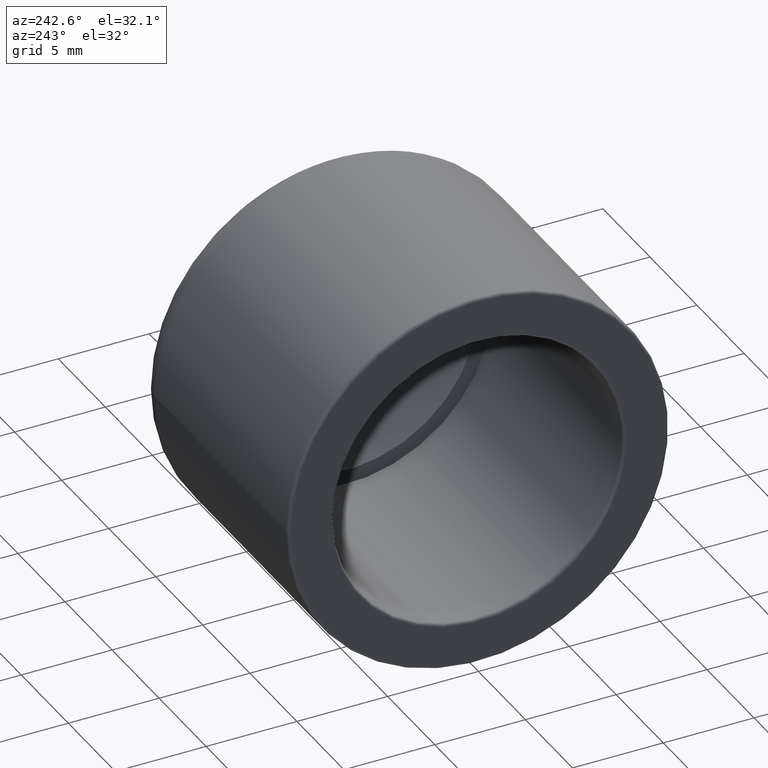
[diagram: clean part render]
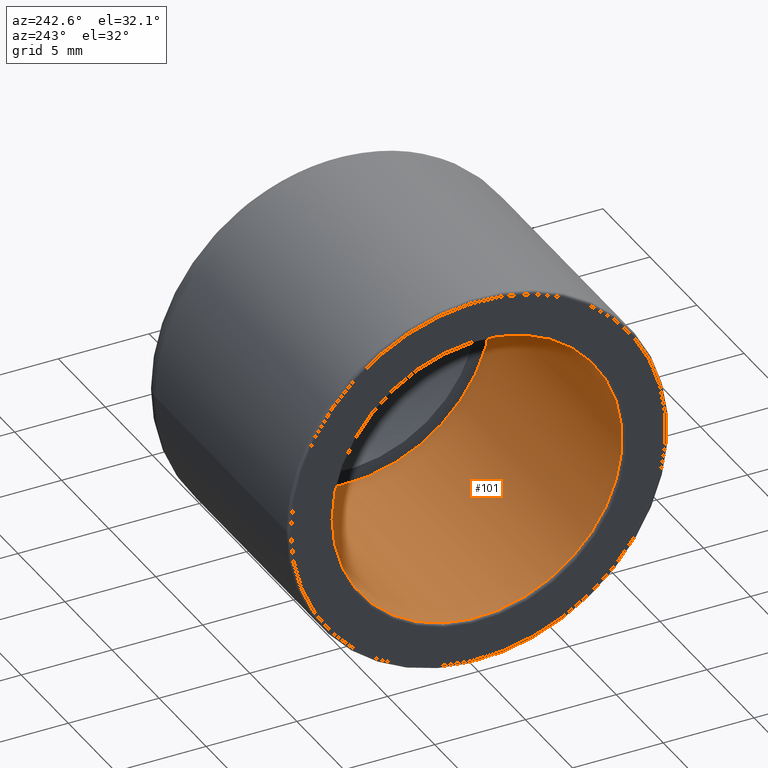
[diagram: same view with one face highlighted and labeled with its STEP entity id]
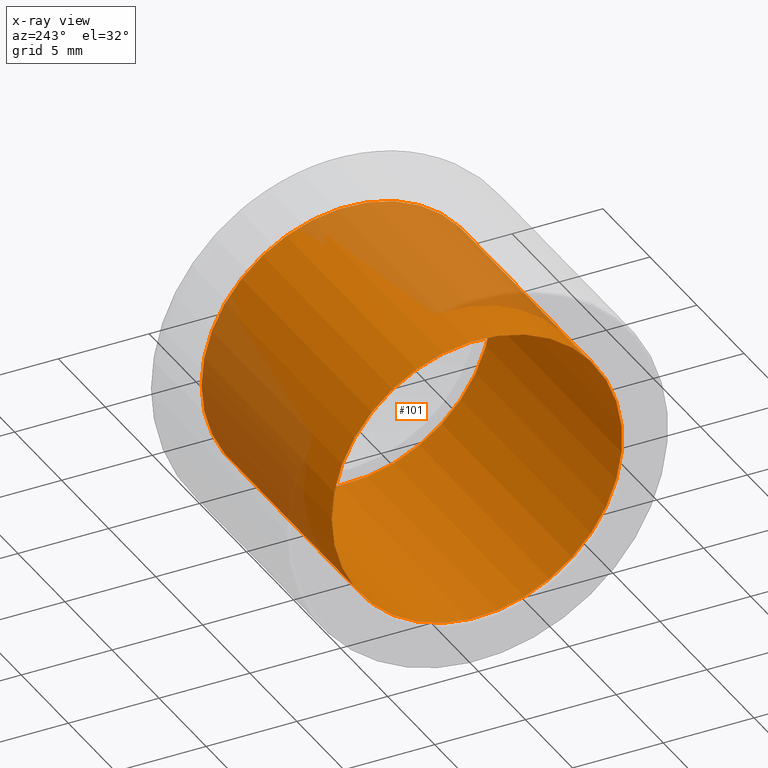
[diagram: x-ray of the same camera — body ghosted, the highlighted face saturated]
A machine part, auxiliary view. The second image highlights one B-rep face of the part: STEP entity #101.
The next image is the same camera in x-ray: the body ghosted, the highlighted face saturated — about 24% of this face is hidden behind the body in this view.
In plain terms, the highlighted cylindrical surface (bore or boss wall) has radius 8 mm, axis along (1, 0, 0).
Its self-contained STEP definition (entity closure, byte-faithful):
#20=CYLINDRICAL_SURFACE('',#118,7.99999999999999);
#25=FACE_BOUND('',#47,.T.);
#33=FACE_OUTER_BOUND('',#46,.T.);
#46=EDGE_LOOP('',(#86));
#47=EDGE_LOOP('',(#87));
#56=CIRCLE('',#114,7.99999999999999);
#59=CIRCLE('',#119,7.99999999999999);
#64=VERTEX_POINT('',#171);
#67=VERTEX_POINT('',#179);
#72=EDGE_CURVE('',#64,#64,#56,.T.);
#75=EDGE_CURVE('',#67,#67,#59,.T.);
#86=ORIENTED_EDGE('',*,*,#75,.T.);
#87=ORIENTED_EDGE('',*,*,#72,.F.);
#101=ADVANCED_FACE('',(#33,#25),#20,.F.);
#114=AXIS2_PLACEMENT_3D('',#172,#140,#141);
#118=AXIS2_PLACEMENT_3D('',#178,#148,#149);
#119=AXIS2_PLACEMENT_3D('',#180,#150,#151);
#140=DIRECTION('center_axis',(1.,2.371856272556E-16,0.));
#141=DIRECTION('ref_axis',(2.38524477946811E-16,-1.,1.83697019872103E-16));
#148=DIRECTION('center_axis',(1.,2.371856272556E-16,0.));
#149=DIRECTION('ref_axis',(-2.11471052309554E-16,1.,0.));
#150=DIRECTION('center_axis',(1.,2.371856272556E-16,0.));
#151=DIRECTION('ref_axis',(0.,0.,-1.));
#171=CARTESIAN_POINT('',(-19.84,7.99999999999999,-4.89858719658941E-16));
#172=CARTESIAN_POINT('Origin',(-19.84,-4.70576284475111E-15,0.));
#178=CARTESIAN_POINT('Origin',(-13.,-3.08341315432281E-15,0.));
#179=CARTESIAN_POINT('',(-6.,7.99999999999999,0.));
#180=CARTESIAN_POINT('Origin',(-6.,-1.4231137635336E-15,0.));